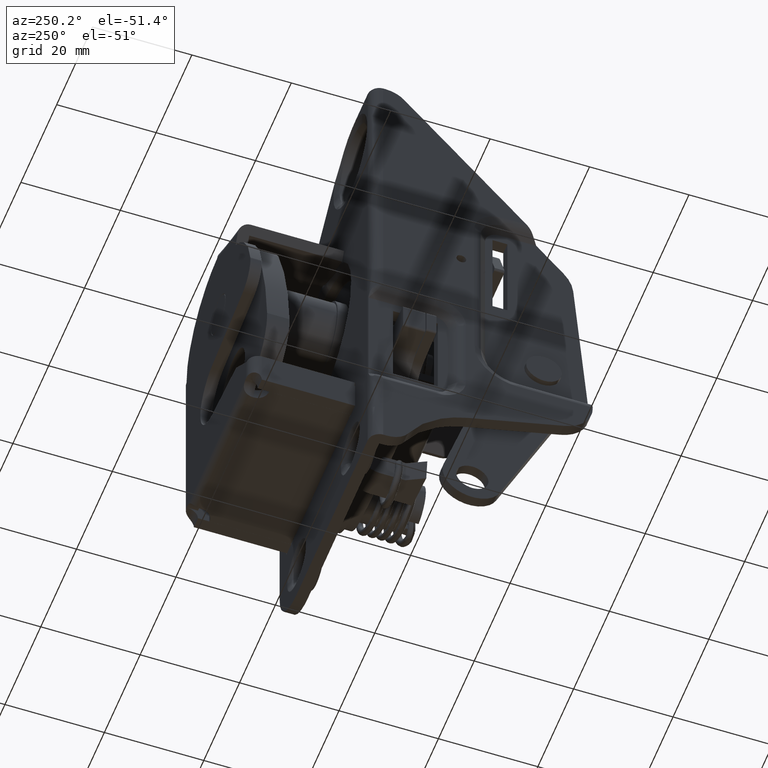
[diagram: clean part render]
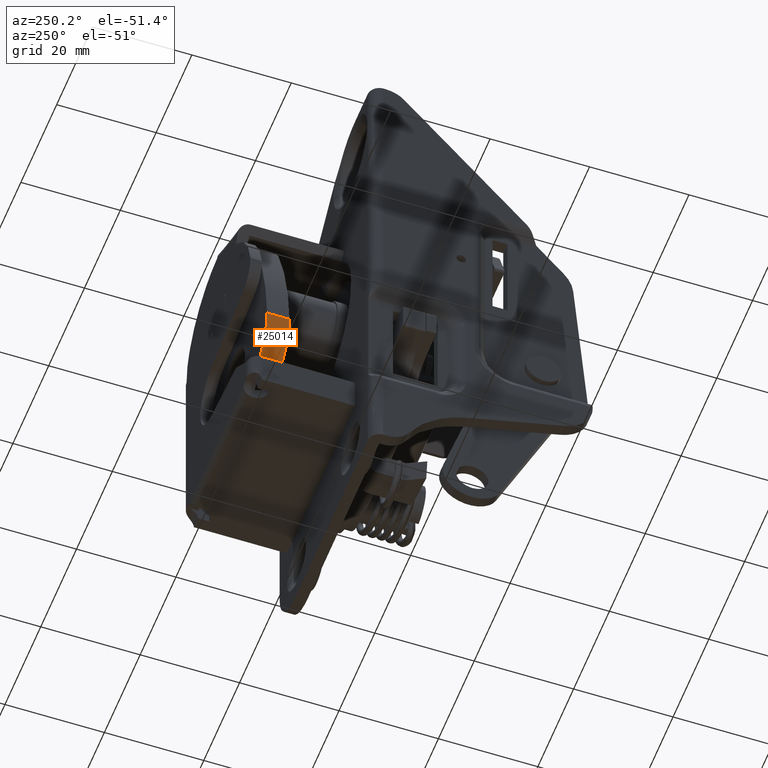
[diagram: same view with one face highlighted and labeled with its STEP entity id]
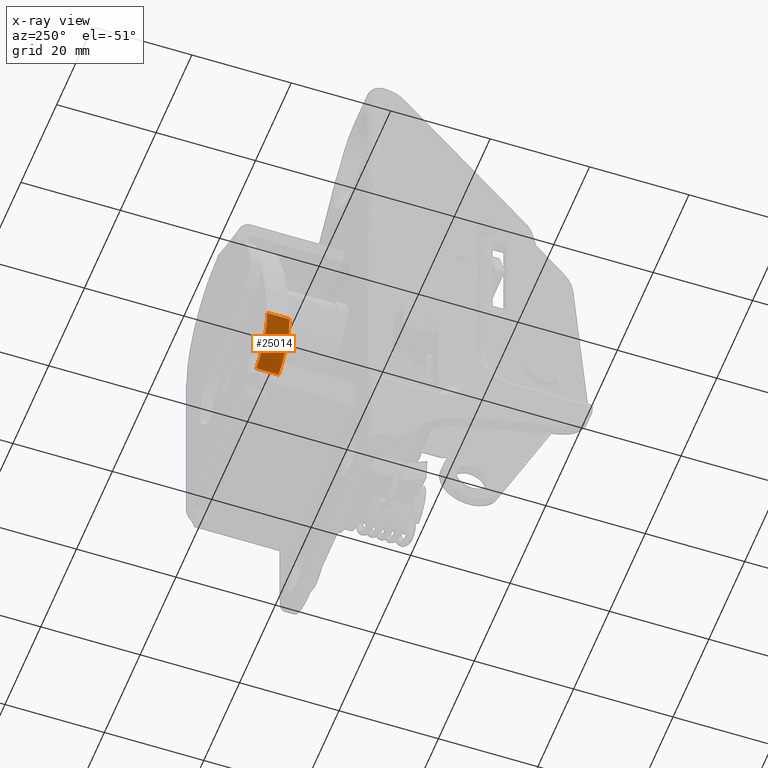
[diagram: x-ray of the same camera — body ghosted, the highlighted face saturated]
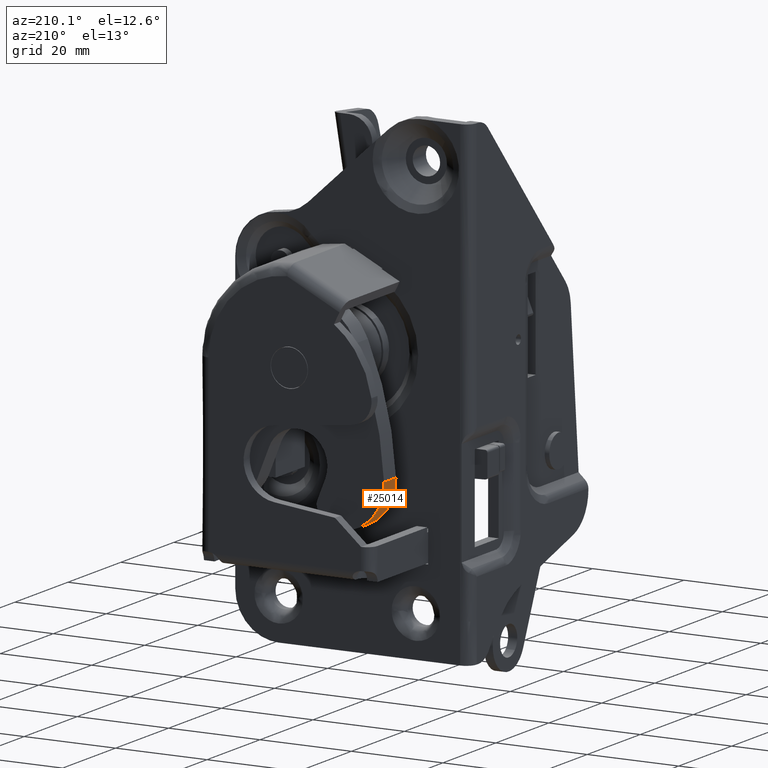
[diagram: same view with one face highlighted and labeled with its STEP entity id]
A machine part, auxiliary view. The second image highlights one B-rep face of the part: STEP entity #25014.
The next image is the same camera in x-ray: the body ghosted, the highlighted face saturated — about 0% of this face is hidden behind the body in this view.
A second angle (auxiliary view) of the same face is appended — the face is thin or edge-on in the first view.
In plain terms, the highlighted face is a freeform B-spline surface patch.
Its self-contained STEP definition (entity closure, byte-faithful):
#24786=CARTESIAN_POINT('',(14.586906549150079,53.0,-6.368602495498849));
#24787=VERTEX_POINT('',#24786);
#24795=CARTESIAN_POINT('',(8.512113658407371,53.0,3.326774216906520));
#24796=VERTEX_POINT('',#24795);
#24797=CARTESIAN_POINT('',(14.586906549150079,53.0,-6.368602495498849));
#24798=CARTESIAN_POINT('',(13.827856150766889,52.999999999999908,-6.046064370153336));
#24799=CARTESIAN_POINT('',(12.473351324495500,53.000000000000099,-5.259766862318491));
#24800=CARTESIAN_POINT('',(10.968370419511629,53.000000000000142,-3.832486363659306));
#24801=CARTESIAN_POINT('',(9.830887201970317,52.999999999999623,-2.260280396800523));
#24802=CARTESIAN_POINT('',(9.019888740532730,53.000000000000327,-0.562257886658247));
#24803=CARTESIAN_POINT('',(8.540769916708145,52.999999999999517,1.388110949948139));
#24804=CARTESIAN_POINT('',(8.480783977232052,53.000000000000732,2.693152962511076));
#24805=CARTESIAN_POINT('',(8.512113658407371,53.0,3.326774216906520));
#24806=B_SPLINE_CURVE_WITH_KNOTS('',3,(#24797,#24798,#24799,#24800,#24801,#24802,#24803,#24804,#24805),.UNSPECIFIED.,.F.,.U.,(4,1,1,1,1,1,4),(0.000000063146867,2.474157980997768,4.662856866463048,6.185366897034751,8.278907017000208,10.277292042997731,12.180476977204901),.UNSPECIFIED.);
#24807=EDGE_CURVE('',#24787,#24796,#24806,.T.);
#24955=CARTESIAN_POINT('',(8.512113658407371,48.500000000000000,3.326774216906520));
#24956=VERTEX_POINT('',#24955);
#24968=CARTESIAN_POINT('',(8.512113658407371,53.0,3.326774216906520));
#24969=CARTESIAN_POINT('',(8.512113658407371,48.500000000000000,3.326774216906520));
#24970=QUASI_UNIFORM_CURVE('',1,(#24968,#24969),.UNSPECIFIED.,.F.,.U.);
#24971=EDGE_CURVE('',#24796,#24956,#24970,.T.);
#24976=CARTESIAN_POINT('',(14.992042985408570,53.112499999999997,-6.530528872733088));
#24977=CARTESIAN_POINT('',(14.992042985408570,48.384687499999998,-6.530528872733088));
#24978=CARTESIAN_POINT('',(7.806383935787615,53.112499999999997,-3.838805508290422));
#24979=CARTESIAN_POINT('',(7.806383935787615,48.384687499999991,-3.838805508290422));
#24980=CARTESIAN_POINT('',(8.546603637073293,53.112499999999997,3.798677417511419));
#24981=CARTESIAN_POINT('',(8.546603637073293,48.384687499999998,3.798677417511419));
#24989=(BOUNDED_SURFACE()B_SPLINE_SURFACE(1,2,((#24976,#24978,#24980),(#24977,#24979,#24981)),.UNSPECIFIED.,.F.,.F.,.U.)B_SPLINE_SURFACE_WITH_KNOTS((2,2),(3,3),(0.0,4.727812499999999),(0.0,13.578170354535009),.UNSPECIFIED.)GEOMETRIC_REPRESENTATION_ITEM()RATIONAL_B_SPLINE_SURFACE(((1.0,0.793353340291236,1.0),(1.0,0.793353340291236,1.0)))REPRESENTATION_ITEM('')SURFACE());
#24990=CARTESIAN_POINT('',(14.586906549150079,48.500000000000000,-6.368602495498849));
#24991=VERTEX_POINT('',#24990);
#24992=CARTESIAN_POINT('',(14.586906549150079,48.500000000000000,-6.368602495498849));
#24993=CARTESIAN_POINT('',(13.681756776700420,48.500000000000071,-5.984233759681517));
#24994=CARTESIAN_POINT('',(12.342338919114329,48.499999999999801,-5.162942170362196));
#24995=CARTESIAN_POINT('',(10.875182515918841,48.500000000000263,-3.703560164941837));
#24996=CARTESIAN_POINT('',(10.036065680446301,48.499999999999737,-2.543756698267652));
#24997=CARTESIAN_POINT('',(9.353461452097632,48.500000000000092,-1.287933689274600));
#24998=CARTESIAN_POINT('',(8.837668037065809,48.499999999999822,0.082717297766936));
#24999=CARTESIAN_POINT('',(8.519731227020886,48.500000000000313,1.706731866304947));
#25000=CARTESIAN_POINT('',(8.485505725852411,48.499999999999993,2.788197609948906));
#25001=CARTESIAN_POINT('',(8.512113658407371,48.500000000000000,3.326774216906520));
#25002=B_SPLINE_CURVE_WITH_KNOTS('',3,(#24992,#24993,#24994,#24995,#24996,#24997,#24998,#24999,#25000,#25001),.UNSPECIFIED.,.F.,.U.,(4,1,1,1,1,1,1,4),(0.000000063146867,2.949959308374597,4.662856866463048,6.185366897034751,7.232147779295423,8.945036667824168,10.562775519799350,12.180476977204901),.UNSPECIFIED.);
#25003=EDGE_CURVE('',#24991,#24956,#25002,.T.);
#25004=ORIENTED_EDGE('',*,*,#25003,.T.);
#25005=ORIENTED_EDGE('',*,*,#24971,.F.);
#25006=ORIENTED_EDGE('',*,*,#24807,.F.);
#25007=CARTESIAN_POINT('',(14.586906549150079,53.0,-6.368602495498849));
#25008=CARTESIAN_POINT('',(14.586906549150079,48.500000000000000,-6.368602495498849));
#25009=QUASI_UNIFORM_CURVE('',1,(#25007,#25008),.UNSPECIFIED.,.F.,.U.);
#25010=EDGE_CURVE('',#24787,#24991,#25009,.T.);
#25011=ORIENTED_EDGE('',*,*,#25010,.T.);
#25012=EDGE_LOOP('',(#25004,#25005,#25006,#25011));
#25013=FACE_OUTER_BOUND('',#25012,.T.);
#25014=ADVANCED_FACE('',(#25013),#24989,.T.);